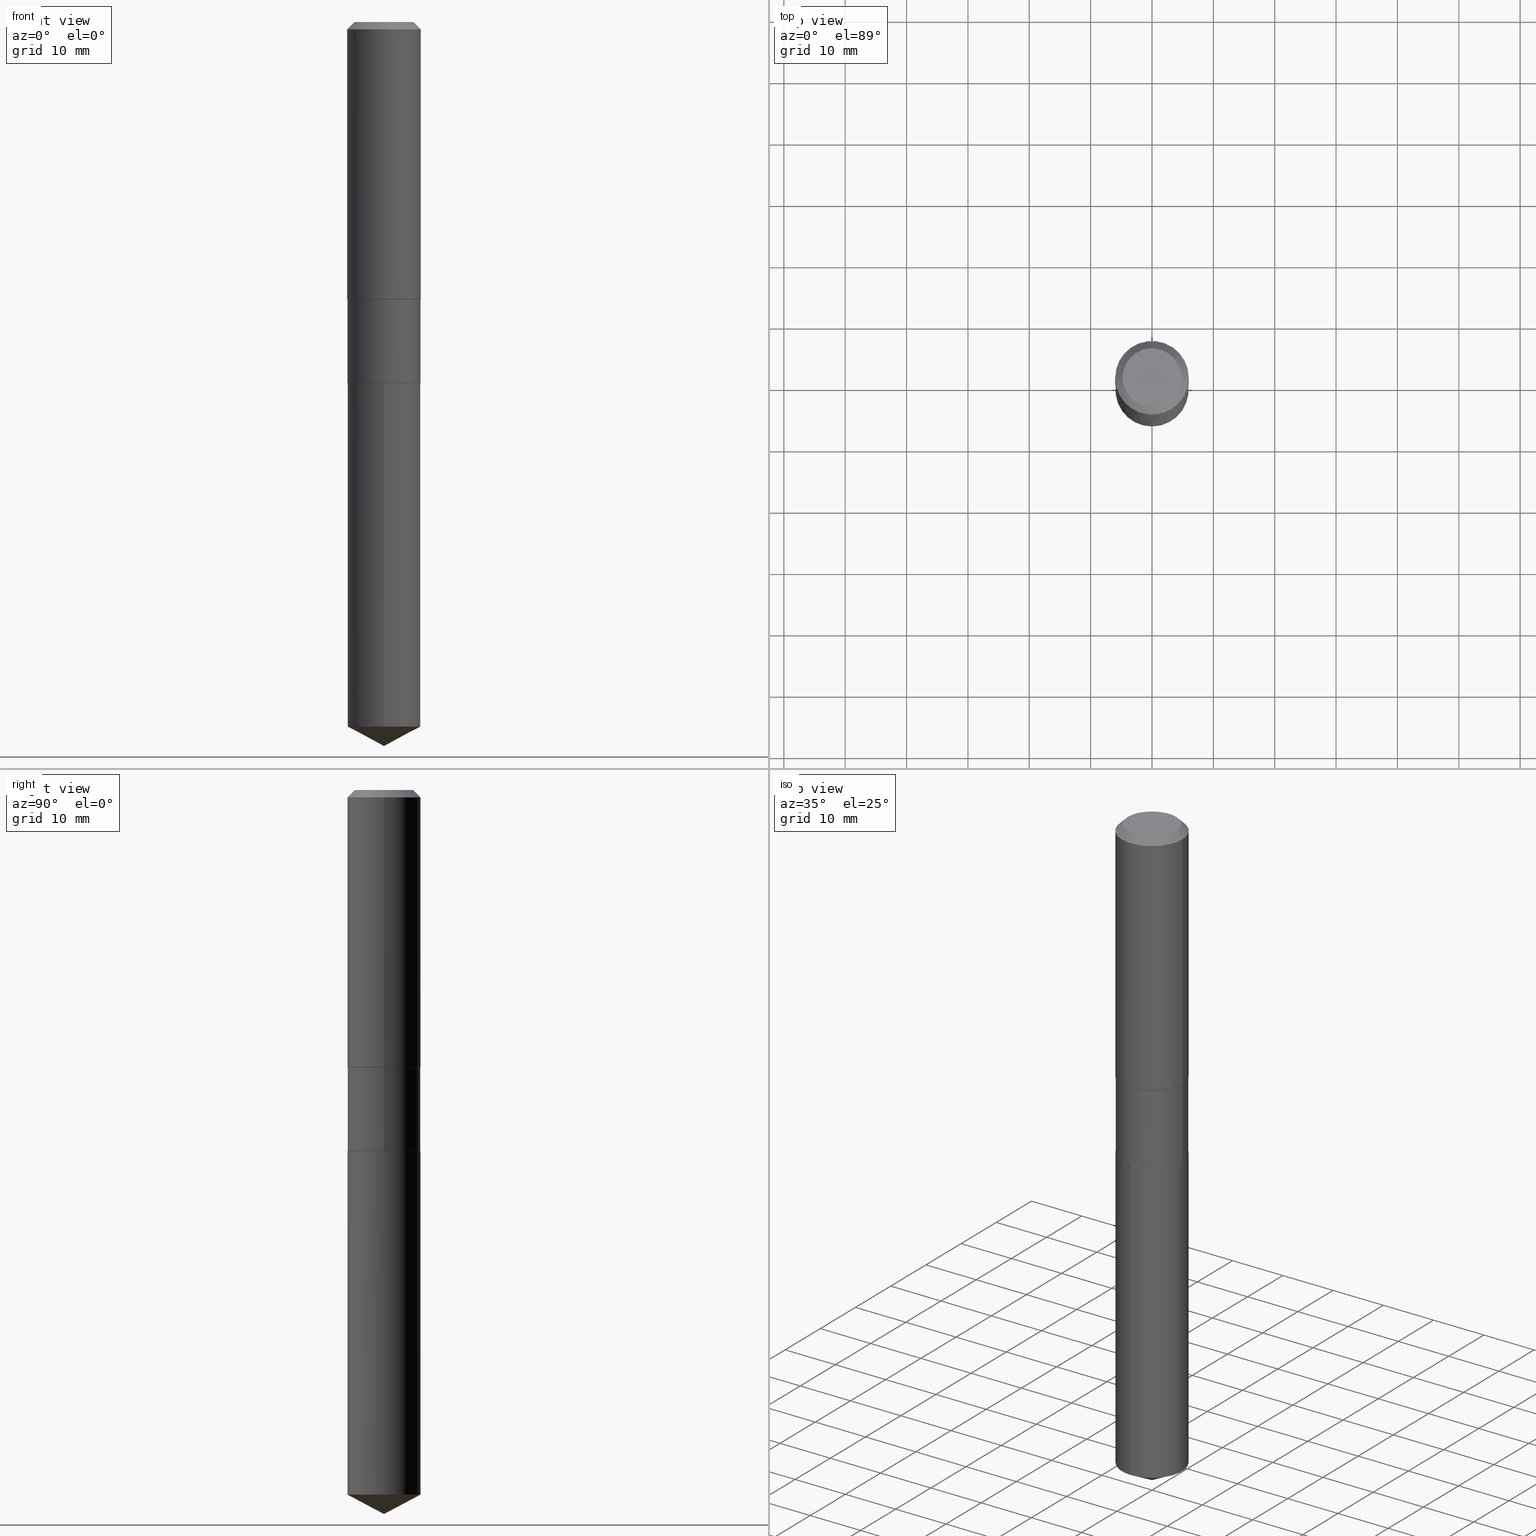
[diagram: canonical four-view strip — front | top / right | iso, engineering-drawing reading convention]
A machine part, canonical four-view strip (front | top / right | iso — engineering-drawing reading convention). The complete STEP part file that produces these views, byte-faithful:
ISO-10303-21;
HEADER;
FILE_DESCRIPTION (( 'STEP AP203' ),
    '1' );
FILE_NAME ('64889.STEP',
    '2024-04-24T19:34:03',
    ( '' ),
    ( '' ),
    'SwSTEP 2.0',
    'SolidWorks 2023',
    '' );
FILE_SCHEMA (( 'CONFIG_CONTROL_DESIGN' ));
ENDSEC;

DATA;
#1 = EDGE_LOOP ( 'NONE', ( #186, #90, #219 ) ) ;
#2 = EDGE_CURVE ( 'NONE', #275, #108, #117, .T. ) ;
#3 = FACE_OUTER_BOUND ( 'NONE', #195, .T. ) ;
#4 = ADVANCED_FACE ( 'NONE', ( #13 ), #64, .T. ) ;
#5 = LINE ( 'NONE', #370, #457 ) ;
#6 = VERTEX_POINT ( 'NONE', #240 ) ;
#7 = CIRCLE ( 'NONE', #440, 0.2362000000000002153 ) ;
#8 = DIRECTION ( 'NONE',  ( -6.982962677686265133E-15, -1.000000000000000000, 3.498631368620187579E-15 ) ) ;
#9 = EDGE_LOOP ( 'NONE', ( #362, #383, #364, #475 ) ) ;
#10 = ORIENTED_EDGE ( 'NONE', *, *, #474, .T. ) ;
#11 = CC_DESIGN_PERSON_AND_ORGANIZATION_ASSIGNMENT ( #164, #126, ( #27 ) ) ;
#12 = PERSON_AND_ORGANIZATION ( #175, #181 ) ;
#13 = FACE_OUTER_BOUND ( 'NONE', #114, .T. ) ;
#14 = AXIS2_PLACEMENT_3D ( 'NONE', #133, #358, #127 ) ;
#15 = DIRECTION ( 'NONE',  ( -2.445468806185136597E-29, 3.491481338843145583E-15, 1.000000000000000000 ) ) ;
#16 = CARTESIAN_POINT ( 'NONE',  ( 1.155239464041865506E-30, -1.649375784469511859E-16, -0.04724000000000028177 ) ) ;
#17 = EDGE_CURVE ( 'NONE', #35, #337, #180, .T. ) ;
#18 = AXIS2_PLACEMENT_3D ( 'NONE', #295, #218, #448 ) ;
#19 = VERTEX_POINT ( 'NONE', #160 ) ;
#20 = EDGE_CURVE ( 'NONE', #69, #275, #393, .T. ) ;
#21 = FACE_OUTER_BOUND ( 'NONE', #315, .T. ) ;
#22 = CONICAL_SURFACE ( 'NONE', #294, 0.2337500000000000133, 0.7853981633975507526 ) ;
#23 = CARTESIAN_POINT ( 'NONE',  ( -9.427742298522546243E-47, 1.346031739168365344E-32, 3.855188123715862256E-18 ) ) ;
#24 = ADVANCED_FACE ( 'NONE', ( #319 ), #428, .T. ) ;
#25 = DIRECTION ( 'NONE',  ( -2.445468806185136597E-29, 3.491481338843145583E-15, 1.000000000000000000 ) ) ;
#26 = ORIENTED_EDGE ( 'NONE', *, *, #357, .F. ) ;
#27 = PRODUCT_DEFINITION ( 'UNKNOWN', '', #220, #298 ) ;
#28 = AXIS2_PLACEMENT_3D ( 'NONE', #422, #239, #343 ) ;
#29 = CARTESIAN_POINT ( 'NONE',  ( 0.2342499999999999583, -1.635759007248007614E-15, 1.142244409730197744E-29 ) ) ;
#30 = CIRCLE ( 'NONE', #230, 0.2342500000000000138 ) ;
#31 = VECTOR ( 'NONE', #285, 39.37007874015748143 ) ;
#32 = CARTESIAN_POINT ( 'NONE',  ( -1.635759007247950816E-15, -0.2342500000000080906, -2.318899999999998851 ) ) ;
#33 = ORIENTED_EDGE ( 'NONE', *, *, #134, .F. ) ;
#34 = CARTESIAN_POINT ( 'NONE',  ( 5.670797614662712652E-29, -8.096396076643368740E-15, -2.318899999999999739 ) ) ;
#35 = VERTEX_POINT ( 'NONE', #125 ) ;
#36 = DIRECTION ( 'NONE',  ( -2.445468806185136597E-29, 3.491481338843145583E-15, 1.000000000000000000 ) ) ;
#37 = VERTEX_POINT ( 'NONE', #348 ) ;
#38 = VECTOR ( 'NONE', #266, 39.37007874015748143 ) ;
#39 = DIRECTION ( 'NONE',  ( 2.445464024596641988E-29, -3.491488186350020456E-15, -1.000000000000000000 ) ) ;
#40 = VECTOR ( 'NONE', #363, 39.37007874015748143 ) ;
#41 = EDGE_CURVE ( 'NONE', #110, #262, #437, .T. ) ;
#42 = CARTESIAN_POINT ( 'NONE',  ( 0.2361999999999999933, -1.814313362916447440E-15, -0.04724000000000028177 ) ) ;
#43 = EDGE_CURVE ( 'NONE', #106, #6, #321, .T. ) ;
#44 = LINE ( 'NONE', #187, #306 ) ;
#45 = ORIENTED_EDGE ( 'NONE', *, *, #355, .T. ) ;
#46 = LINE ( 'NONE', #418, #254 ) ;
#47 = VECTOR ( 'NONE', #402, 39.37007874015748854 ) ;
#48 = ADVANCED_BREP_SHAPE_REPRESENTATION ( '64889', ( #271, #264, #375 ), #137 ) ;
#49 = CARTESIAN_POINT ( 'NONE',  ( 4.353179021890160223E-29, -6.215185931274680764E-15, -1.780099999999999349 ) ) ;
#50 = APPROVAL_STATUS ( 'not_yet_approved' ) ;
#51 = EDGE_LOOP ( 'NONE', ( #303, #426, #292, #454 ) ) ;
#52 = COORDINATED_UNIVERSAL_TIME_OFFSET ( 5, 0, .BEHIND. ) ;
#53 = CARTESIAN_POINT ( 'NONE',  ( 5.669574880259619850E-29, -8.094650335973948025E-15, -2.318399999999999572 ) ) ;
#54 = CARTESIAN_POINT ( 'NONE',  ( 1.155239464041865506E-30, -1.649375784469511859E-16, -0.04724000000000028177 ) ) ;
#55 = ADVANCED_FACE ( 'NONE', ( #276 ), #221, .T. ) ;
#56 = DATE_AND_TIME ( #323, #155 ) ;
#57 = DIRECTION ( 'NONE',  ( 1.000000000000000000, -6.982962677686265133E-15, 0.000000000000000000 ) ) ;
#58 = ORIENTED_EDGE ( 'NONE', *, *, #2, .T. ) ;
#59 = APPROVAL ( #394, 'UNSPECIFIED' ) ;
#60 = APPROVAL_ROLE ( '' ) ;
#61 = DIRECTION ( 'NONE',  ( -2.445468806185136597E-29, 3.491481338843145583E-15, 1.000000000000000000 ) ) ;
#62 = EDGE_CURVE ( 'NONE', #37, #166, #46, .T. ) ;
#63 = DIRECTION ( 'NONE',  ( 1.000000000000000000, -6.982962677686266711E-15, 0.000000000000000000 ) ) ;
#64 = CONICAL_SURFACE ( 'NONE', #463, 0.2361999999999999933, 0.7853981633974452814 ) ;
#65 = CIRCLE ( 'NONE', #304, 0.1889600000000000168 ) ;
#66 = EDGE_CURVE ( 'NONE', #110, #81, #85, .T. ) ;
#67 = CYLINDRICAL_SURFACE ( 'NONE', #368, 0.2362000000000001043 ) ;
#68 = LINE ( 'NONE', #281, #268 ) ;
#69 = VERTEX_POINT ( 'NONE', #469 ) ;
#70 = CARTESIAN_POINT ( 'NONE',  ( -0.2342499999999999305, -5.490471775106280794E-15, -1.780099999999999349 ) ) ;
#71 = AXIS2_PLACEMENT_3D ( 'NONE', #434, #324, #174 ) ;
#72 = DIRECTION ( 'NONE',  ( 1.000000000000000000, -6.982962677686266711E-15, 4.876176775795935793E-29 ) ) ;
#73 = ORIENTED_EDGE ( 'NONE', *, *, #480, .F. ) ;
#74 = APPROVAL ( #50, 'UNSPECIFIED' ) ;
#75 = DIRECTION ( 'NONE',  ( -2.445464024596642268E-29, 3.491488186350020456E-15, 1.000000000000000000 ) ) ;
#76 = LINE ( 'NONE', #150, #145 ) ;
#77 = DIRECTION ( 'NONE',  ( 0.000000000000000000, 0.000000000000000000, 1.000000000000000000 ) ) ;
#78 = CARTESIAN_POINT ( 'NONE',  ( 0.2342499999999999305, -7.850944938522688772E-15, -1.780099999999999349 ) ) ;
#79 = AXIS2_PLACEMENT_3D ( 'NONE', #225, #39, #379 ) ;
#80 = EDGE_CURVE ( 'NONE', #143, #108, #7, .T. ) ;
#81 = VERTEX_POINT ( 'NONE', #211 ) ;
#82 = DIRECTION ( 'NONE',  ( -2.445468806185136597E-29, 3.491481338843145583E-15, 1.000000000000000000 ) ) ;
#83 = ORIENTED_EDGE ( 'NONE', *, *, #41, .T. ) ;
#84 = EDGE_LOOP ( 'NONE', ( #83, #156, #269, #296 ) ) ;
#85 = LINE ( 'NONE', #87, #376 ) ;
#86 = CIRCLE ( 'NONE', #248, 0.2342500000000000138 ) ;
#87 = CARTESIAN_POINT ( 'NONE',  ( 0.2337500000000000133, -9.728663602552533741E-15, -2.318899999999999739 ) ) ;
#88 = ORIENTED_EDGE ( 'NONE', *, *, #447, .F. ) ;
#89 = DATE_TIME_ROLE ( 'creation_date' ) ;
#90 = ORIENTED_EDGE ( 'NONE', *, *, #134, .T. ) ;
#91 = EDGE_CURVE ( 'NONE', #275, #340, #113, .T. ) ;
#92 = DIRECTION ( 'NONE',  ( 2.445468806185136597E-29, -3.491481338843145583E-15, -1.000000000000000000 ) ) ;
#93 = PERSON_AND_ORGANIZATION ( #175, #181 ) ;
#94 = EDGE_CURVE ( 'NONE', #37, #19, #212, .T. ) ;
#95 = CYLINDRICAL_SURFACE ( 'NONE', #456, 0.2362000000000001043 ) ;
#96 = DIRECTION ( 'NONE',  ( 1.000000000000000000, -6.982962677686266711E-15, 4.876176775795935793E-29 ) ) ;
#97 = VECTOR ( 'NONE', #387, 39.37007874015747433 ) ;
#98 = AXIS2_PLACEMENT_3D ( 'NONE', #49, #353, #471 ) ;
#99 = DIRECTION ( 'NONE',  ( 1.000000000000000000, -6.982962677686267499E-15, 0.000000000000000000 ) ) ;
#100 = DIRECTION ( 'NONE',  ( -2.445468806185136877E-29, 3.491481338843145188E-15, 1.000000000000000000 ) ) ;
#101 = FACE_OUTER_BOUND ( 'NONE', #237, .T. ) ;
#102 = CIRCLE ( 'NONE', #189, 0.2342500000000000138 ) ;
#103 = CC_DESIGN_DATE_AND_TIME_ASSIGNMENT ( #234, #391, ( #202 ) ) ;
#104 = AXIS2_PLACEMENT_3D ( 'NONE', #200, #482, #473 ) ;
#105 = DIRECTION ( 'NONE',  ( -2.445468806185136597E-29, 3.491481338843145583E-15, 1.000000000000000000 ) ) ;
#106 = VERTEX_POINT ( 'NONE', #398 ) ;
#107 = DIRECTION ( 'NONE',  ( 0.7071067811865536790, -2.468850131082321353E-15, 0.7071067811865413555 ) ) ;
#108 = VERTEX_POINT ( 'NONE', #483 ) ;
#109 = DIRECTION ( 'NONE',  ( 1.000000000000000000, -6.982962677686265922E-15, 4.876176775795935793E-29 ) ) ;
#110 = VERTEX_POINT ( 'NONE', #367 ) ;
#111 = MECHANICAL_CONTEXT ( 'NONE', #270, 'mechanical' ) ;
#112 = CARTESIAN_POINT ( 'NONE',  ( 0.2342499999999999305, -7.850944938522688772E-15, -1.780099999999999349 ) ) ;
#113 = CIRCLE ( 'NONE', #420, 0.2342499999999999305 ) ;
#114 = EDGE_LOOP ( 'NONE', ( #179, #140, #378, #152 ) ) ;
#115 = ORIENTED_EDGE ( 'NONE', *, *, #2, .F. ) ;
#116 = CLOSED_SHELL ( 'NONE', ( #122, #4, #210, #24, #316, #365, #278, #173, #55, #118, #301, #351 ) ) ;
#117 = LINE ( 'NONE', #151, #427 ) ;
#118 = ADVANCED_FACE ( 'NONE', ( #327 ), #361, .F. ) ;
#119 = DIRECTION ( 'NONE',  ( -1.000000000000000000, 6.982962677686266711E-15, 0.000000000000000000 ) ) ;
#120 = CALENDAR_DATE ( 2024, 24, 4 ) ;
#121 = CARTESIAN_POINT ( 'NONE',  ( -8.491720789749803429E-28, 1.212397740282873395E-13, 34.72437874015748349 ) ) ;
#122 = ADVANCED_FACE ( 'NONE', ( #288 ), #277, .T. ) ;
#123 = DIRECTION ( 'NONE',  ( 1.000000000000000000, -6.982962677686266711E-15, 0.000000000000000000 ) ) ;
#124 = APPROVAL_ROLE ( '' ) ;
#125 = CARTESIAN_POINT ( 'NONE',  ( -0.2361999999999999933, -1.508355618690086330E-15, -0.04724000000000028177 ) ) ;
#126 = PERSON_AND_ORGANIZATION_ROLE ( 'creator' ) ;
#127 = DIRECTION ( 'NONE',  ( -6.982962677686265133E-15, -1.000000000000000000, 2.332420912413458386E-15 ) ) ;
#128 = PERSON_AND_ORGANIZATION_ROLE ( 'classification_officer' ) ;
#129 = CARTESIAN_POINT ( 'NONE',  ( 0.000000000000000000, 0.000000000000000000, 0.000000000000000000 ) ) ;
#130 = DIRECTION ( 'NONE',  ( 1.000000000000000000, -6.982962677686266711E-15, 4.876176775795935793E-29 ) ) ;
#131 = ORIENTED_EDGE ( 'NONE', *, *, #161, .T. ) ;
#132 = VECTOR ( 'NONE', #107, 39.37007874015748143 ) ;
#133 = CARTESIAN_POINT ( 'NONE',  ( 1.105631358694246645E-28, -1.578551568972603113E-14, -4.521147065633298823 ) ) ;
#134 = EDGE_CURVE ( 'NONE', #286, #37, #356, .T. ) ;
#135 = CARTESIAN_POINT ( 'NONE',  ( 4.353179021890160223E-29, -6.215185931274680764E-15, -1.780099999999999349 ) ) ;
#136 = CYLINDRICAL_SURFACE ( 'NONE', #481, 0.2342499999999999583 ) ;
#137 =( GEOMETRIC_REPRESENTATION_CONTEXT ( 3 ) GLOBAL_UNCERTAINTY_ASSIGNED_CONTEXT ( ( #199 ) ) GLOBAL_UNIT_ASSIGNED_CONTEXT ( ( #172, #414, #341 ) ) REPRESENTATION_CONTEXT ( 'NONE', 'WORKASPACE' ) );
#138 = CLOSED_SHELL ( 'NONE', ( #409, #349, #442, #318, #283 ) ) ;
#139 = DIRECTION ( 'NONE',  ( -6.982962677686265133E-15, -1.000000000000000000, 3.498631368620187579E-15 ) ) ;
#140 = ORIENTED_EDGE ( 'NONE', *, *, #396, .T. ) ;
#141 = EDGE_CURVE ( 'NONE', #19, #37, #359, .T. ) ;
#142 = DIRECTION ( 'NONE',  ( -2.445464024596642268E-29, 3.491488186350020456E-15, 1.000000000000000000 ) ) ;
#143 = VERTEX_POINT ( 'NONE', #320 ) ;
#144 = APPLICATION_PROTOCOL_DEFINITION ( 'international standard', 'config_control_design', 1994, #270 ) ;
#145 = VECTOR ( 'NONE', #345, 39.37007874015748143 ) ;
#146 = CARTESIAN_POINT ( 'NONE',  ( -8.491720789749803429E-28, 1.212397740282873395E-13, 34.72437874015748349 ) ) ;
#147 = FACE_OUTER_BOUND ( 'NONE', #228, .T. ) ;
#148 = AXIS2_PLACEMENT_3D ( 'NONE', #158, #308, #317 ) ;
#149 = ORIENTED_EDGE ( 'NONE', *, *, #447, .T. ) ;
#150 = CARTESIAN_POINT ( 'NONE',  ( -0.2337500000000000133, -6.435502431804135250E-15, -2.318899999999999739 ) ) ;
#151 = CARTESIAN_POINT ( 'NONE',  ( -0.2342499999999999305, -4.550739572756646375E-15, -1.780099999999999349 ) ) ;
#152 = ORIENTED_EDGE ( 'NONE', *, *, #227, .F. ) ;
#153 = APPLICATION_PROTOCOL_DEFINITION ( 'international standard', 'config_control_design', 1994, #430 ) ;
#154 = PERSON_AND_ORGANIZATION ( #175, #181 ) ;
#155 = LOCAL_TIME ( 15, 34, 3.000000000000000000, #476 ) ;
#156 = ORIENTED_EDGE ( 'NONE', *, *, #439, .T. ) ;
#157 = EDGE_CURVE ( 'NONE', #143, #337, #397, .T. ) ;
#158 = CARTESIAN_POINT ( 'NONE',  ( 5.670797614662712652E-29, -8.096396076643368740E-15, -2.318899999999999739 ) ) ;
#159 = CALENDAR_DATE ( 2024, 24, 4 ) ;
#160 = CARTESIAN_POINT ( 'NONE',  ( -1.635759007247896976E-15, -0.2342500000000157512, -4.521147065633297935 ) ) ;
#161 = EDGE_CURVE ( 'NONE', #262, #110, #259, .T. ) ;
#162 = CARTESIAN_POINT ( 'NONE',  ( 1.136091458957753192E-28, -1.622037490995890314E-14, -4.645699999999999719 ) ) ;
#163 = AXIS2_PLACEMENT_3D ( 'NONE', #135, #241, #330 ) ;
#164 = PERSON_AND_ORGANIZATION ( #175, #181 ) ;
#165 = CARTESIAN_POINT ( 'NONE',  ( 0.2362000000000001043, -1.649375784469496920E-15, 1.151752954443000508E-29 ) ) ;
#166 = VERTEX_POINT ( 'NONE', #280 ) ;
#167 = CARTESIAN_POINT ( 'NONE',  ( 4.353179021890160223E-29, -6.215185931274680764E-15, -1.780099999999999349 ) ) ;
#168 = APPROVAL_PERSON_ORGANIZATION ( #384, #74, #193 ) ;
#169 = CARTESIAN_POINT ( 'NONE',  ( -0.2337500000000000133, -6.432853204630024837E-15, -2.318899999999999739 ) ) ;
#170 = CC_DESIGN_APPROVAL ( #59, ( #220 ) ) ;
#171 = ORIENTED_EDGE ( 'NONE', *, *, #66, .T. ) ;
#172 =( CONVERSION_BASED_UNIT ( 'INCH', #251 ) LENGTH_UNIT ( ) NAMED_UNIT ( #329 ) );
#173 = ADVANCED_FACE ( 'NONE', ( #21 ), #95, .T. ) ;
#174 = DIRECTION ( 'NONE',  ( 1.000000000000000000, -6.982962677686262766E-15, 0.000000000000000000 ) ) ;
#175 = PERSON ( 'UNSPECIFIED', 'UNSPECIFIED', 'UNSPECIFIED', ('UNSPECIFIED'), ('UNSPECIFIED'), ('UNSPECIFIED') ) ;
#176 = CARTESIAN_POINT ( 'NONE',  ( 4.348410357718098409E-29, -6.208377542663936505E-15, -1.778149999999999231 ) ) ;
#177 = EDGE_LOOP ( 'NONE', ( #385, #184, #203, #223 ) ) ;
#178 = CYLINDRICAL_SURFACE ( 'NONE', #433, 0.2342500000000000138 ) ;
#179 = ORIENTED_EDGE ( 'NONE', *, *, #258, .F. ) ;
#180 = CIRCLE ( 'NONE', #244, 0.2361999999999999933 ) ;
#181 = ORGANIZATION ( 'UNSPECIFIED', 'UNSPECIFIED', '' ) ;
#182 = AXIS2_PLACEMENT_3D ( 'NONE', #429, #92, #312 ) ;
#183 = DIRECTION ( 'NONE',  ( -2.445468806185136597E-29, 3.491481338843145583E-15, 1.000000000000000000 ) ) ;
#184 = ORIENTED_EDGE ( 'NONE', *, *, #403, .T. ) ;
#185 = DIRECTION ( 'NONE',  ( 1.000000000000000000, -6.982962677686266711E-15, 0.000000000000000000 ) ) ;
#186 = ORIENTED_EDGE ( 'NONE', *, *, #474, .F. ) ;
#187 = CARTESIAN_POINT ( 'NONE',  ( 0.2361999999999999933, -1.785387205520586782E-15, -0.04724000000000028177 ) ) ;
#188 = ORIENTED_EDGE ( 'NONE', *, *, #141, .T. ) ;
#189 = AXIS2_PLACEMENT_3D ( 'NONE', #53, #15, #57 ) ;
#190 = CC_DESIGN_PERSON_AND_ORGANIZATION_ASSIGNMENT ( #154, #128, ( #202 ) ) ;
#191 = VERTEX_POINT ( 'NONE', #479 ) ;
#192 = DIRECTION ( 'NONE',  ( 0.7071067811866199593, -2.468850131083015945E-15, 0.7071067811864750752 ) ) ;
#193 = APPROVAL_ROLE ( '' ) ;
#194 = DIRECTION ( 'NONE',  ( -2.445464024596642268E-29, 3.491488186350020456E-15, 1.000000000000000000 ) ) ;
#195 = EDGE_LOOP ( 'NONE', ( #421, #478 ) ) ;
#196 = PERSON_AND_ORGANIZATION_ROLE ( 'creator' ) ;
#197 = DIRECTION ( 'NONE',  ( 2.445468806185136597E-29, -3.491481338843145583E-15, -1.000000000000000000 ) ) ;
#198 = CARTESIAN_POINT ( 'NONE',  ( -0.2342499999999999583, 1.664446358518034389E-15, -1.152260544892211521E-29 ) ) ;
#199 = UNCERTAINTY_MEASURE_WITH_UNIT (LENGTH_MEASURE( 1.000000000000000082E-05 ), #172, 'distance_accuracy_value', 'NONE');
#200 = CARTESIAN_POINT ( 'NONE',  ( -4.713871149261273121E-47, 6.730158695841826722E-33, 1.927594061857931128E-18 ) ) ;
#201 = CARTESIAN_POINT ( 'NONE',  ( 0.000000000000000000, 0.000000000000000000, 0.000000000000000000 ) ) ;
#202 = SECURITY_CLASSIFICATION ( '', '', #238 ) ;
#203 = ORIENTED_EDGE ( 'NONE', *, *, #431, .F. ) ;
#204 = AXIS2_PLACEMENT_3D ( 'NONE', #441, #25, #249 ) ;
#205 = AXIS2_PLACEMENT_3D ( 'NONE', #416, #82, #213 ) ;
#206 = LINE ( 'NONE', #32, #40 ) ;
#207 = EDGE_LOOP ( 'NONE', ( #149, #58, #400, #273 ) ) ;
#208 = DIRECTION ( 'NONE',  ( -0.7071067811865453523, 2.468850131082234184E-15, -0.7071067811865496822 ) ) ;
#209 = ORIENTED_EDGE ( 'NONE', *, *, #224, .T. ) ;
#210 = ADVANCED_FACE ( 'NONE', ( #401 ), #67, .T. ) ;
#211 = CARTESIAN_POINT ( 'NONE',  ( 0.2342500000000000138, -9.730409343221956034E-15, -2.318399999999999572 ) ) ;
#212 = CIRCLE ( 'NONE', #14, 0.2342500000000000138 ) ;
#213 = DIRECTION ( 'NONE',  ( 1.000000000000000000, -6.982962677686265133E-15, 0.000000000000000000 ) ) ;
#214 = APPROVAL_DATE_TIME ( #467, #74 ) ;
#215 = CC_DESIGN_PERSON_AND_ORGANIZATION_ASSIGNMENT ( #338, #455, ( #408 ) ) ;
#216 = FACE_OUTER_BOUND ( 'NONE', #350, .T. ) ;
#217 = ORIENTED_EDGE ( 'NONE', *, *, #41, .F. ) ;
#218 = DIRECTION ( 'NONE',  ( -2.445468806185136597E-29, 3.491481338843145583E-15, 1.000000000000000000 ) ) ;
#219 = ORIENTED_EDGE ( 'NONE', *, *, #141, .F. ) ;
#220 = PRODUCT_DEFINITION_FORMATION_WITH_SPECIFIED_SOURCE ( 'ANY', '', #408, .NOT_KNOWN. ) ;
#221 = CONICAL_SURFACE ( 'NONE', #182, 0.2361999999999999933, 0.7853981633974452814 ) ;
#222 = FACE_OUTER_BOUND ( 'NONE', #1, .T. ) ;
#223 = ORIENTED_EDGE ( 'NONE', *, *, #157, .F. ) ;
#224 = EDGE_CURVE ( 'NONE', #81, #340, #477, .T. ) ;
#225 = CARTESIAN_POINT ( 'NONE',  ( 5.670797614662712652E-29, -8.096396076643368740E-15, -2.318899999999999739 ) ) ;
#226 = EDGE_LOOP ( 'NONE', ( #344, #449 ) ) ;
#227 = EDGE_CURVE ( 'NONE', #106, #35, #68, .T. ) ;
#228 = EDGE_LOOP ( 'NONE', ( #346, #371, #88, #307 ) ) ;
#229 = LOCAL_TIME ( 15, 34, 3.000000000000000000, #435 ) ;
#230 = AXIS2_PLACEMENT_3D ( 'NONE', #236, #194, #8 ) ;
#231 =( LENGTH_UNIT ( ) NAMED_UNIT ( * ) SI_UNIT ( $, .METRE. ) );
#232 = CIRCLE ( 'NONE', #399, 0.2362000000000002153 ) ;
#233 = DIRECTION ( 'NONE',  ( -2.445468806185136597E-29, 3.491481338843145583E-15, 1.000000000000000000 ) ) ;
#234 = DATE_AND_TIME ( #386, #229 ) ;
#235 = ORIENTED_EDGE ( 'NONE', *, *, #261, .F. ) ;
#236 = CARTESIAN_POINT ( 'NONE',  ( 5.670797614662712652E-29, -8.096396076643368740E-15, -2.318899999999999739 ) ) ;
#237 = EDGE_LOOP ( 'NONE', ( #423, #131, #171, #73 ) ) ;
#238 = SECURITY_CLASSIFICATION_LEVEL ( 'unclassified' ) ;
#239 = DIRECTION ( 'NONE',  ( -2.445468806185136597E-29, 3.491481338843145583E-15, 1.000000000000000000 ) ) ;
#240 = CARTESIAN_POINT ( 'NONE',  ( 0.1889600000000000168, -1.540873453589747738E-15, 3.855188123725863225E-18 ) ) ;
#241 = DIRECTION ( 'NONE',  ( -2.445468806185136597E-29, 3.491481338843145583E-15, 1.000000000000000000 ) ) ;
#242 = PRODUCT_DEFINITION_SHAPE ( 'NONE', 'NONE',  #27 ) ;
#243 = DIRECTION ( 'NONE',  ( -2.445468806185136597E-29, 3.491481338843145583E-15, 1.000000000000000000 ) ) ;
#244 = AXIS2_PLACEMENT_3D ( 'NONE', #16, #380, #123 ) ;
#245 = DIRECTION ( 'NONE',  ( 1.000000000000000000, -6.982962677686266711E-15, 4.876185090822587894E-29 ) ) ;
#246 = CC_DESIGN_SECURITY_CLASSIFICATION ( #202, ( #220 ) ) ;
#247 = ORIENTED_EDGE ( 'NONE', *, *, #355, .F. ) ;
#248 = AXIS2_PLACEMENT_3D ( 'NONE', #302, #75, #453 ) ;
#249 = DIRECTION ( 'NONE',  ( 1.000000000000000000, -6.982962677686262766E-15, 0.000000000000000000 ) ) ;
#250 = EDGE_LOOP ( 'NONE', ( #289, #373, #209, #451 ) ) ;
#251 = LENGTH_MEASURE_WITH_UNIT ( LENGTH_MEASURE( 0.02539999999999999897 ), #231 );
#252 = CARTESIAN_POINT ( 'NONE',  ( 4.348410357718098409E-29, -6.208377542663936505E-15, -1.778149999999999231 ) ) ;
#253 = CYLINDRICAL_SURFACE ( 'NONE', #342, 0.2342500000000000138 ) ;
#254 = VECTOR ( 'NONE', #464, 39.37007874015748143 ) ;
#255 = CARTESIAN_POINT ( 'NONE',  ( 1.136089221906862028E-28, -1.622040666732628872E-14, -4.645699999999999719 ) ) ;
#256 = CARTESIAN_POINT ( 'NONE',  ( 0.000000000000000000, 0.000000000000000000, 0.000000000000000000 ) ) ;
#257 = LINE ( 'NONE', #112, #132 ) ;
#258 = EDGE_CURVE ( 'NONE', #6, #106, #65, .T. ) ;
#259 = CIRCLE ( 'NONE', #204, 0.2337500000000000133 ) ;
#260 = FACE_OUTER_BOUND ( 'NONE', #250, .T. ) ;
#261 = EDGE_CURVE ( 'NONE', #19, #191, #206, .T. ) ;
#262 = VERTEX_POINT ( 'NONE', #169 ) ;
#263 = CIRCLE ( 'NONE', #18, 0.2361999999999999933 ) ;
#264 = MANIFOLD_SOLID_BREP ( 'Body-Move/Copy2[2]', #116 ) ;
#265 = FACE_OUTER_BOUND ( 'NONE', #406, .T. ) ;
#266 = DIRECTION ( 'NONE',  ( -2.445468806185136877E-29, 3.491481338843145188E-15, 1.000000000000000000 ) ) ;
#267 = CC_DESIGN_DATE_AND_TIME_ASSIGNMENT ( #56, #89, ( #27 ) ) ;
#268 = VECTOR ( 'NONE', #208, 39.37007874015748143 ) ;
#269 = ORIENTED_EDGE ( 'NONE', *, *, #389, .F. ) ;
#270 = APPLICATION_CONTEXT ( 'configuration controlled 3d designs of mechanical parts and assemblies' ) ;
#271 = MANIFOLD_SOLID_BREP ( 'Body-Move/Copy2[1]', #138 ) ;
#272 = PERSON_AND_ORGANIZATION ( #175, #181 ) ;
#273 = ORIENTED_EDGE ( 'NONE', *, *, #309, .F. ) ;
#274 = PERSON_AND_ORGANIZATION_ROLE ( 'design_supplier' ) ;
#275 = VERTEX_POINT ( 'NONE', #70 ) ;
#276 = FACE_OUTER_BOUND ( 'NONE', #9, .T. ) ;
#277 = CONICAL_SURFACE ( 'NONE', #71, 0.2337500000000000133, 0.7853981633975507526 ) ;
#278 = ADVANCED_FACE ( 'NONE', ( #328 ), #405, .T. ) ;
#279 = DATE_AND_TIME ( #120, #412 ) ;
#280 = CARTESIAN_POINT ( 'NONE',  ( 1.664446358518145618E-15, 0.2342499999999919369, -2.318900000000000627 ) ) ;
#281 = CARTESIAN_POINT ( 'NONE',  ( -0.2361999999999999933, 1.484438206022545019E-15, -0.04724000000000028177 ) ) ;
#282 = AXIS2_PLACEMENT_3D ( 'NONE', #121, #311, #462 ) ;
#283 = ADVANCED_FACE ( 'NONE', ( #3 ), #334, .F. ) ;
#284 = APPROVAL_PERSON_ORGANIZATION ( #272, #59, #60 ) ;
#285 = DIRECTION ( 'NONE',  ( -2.445468806185136877E-29, 3.491481338843145188E-15, 1.000000000000000000 ) ) ;
#286 = VERTEX_POINT ( 'NONE', #255 ) ;
#287 = VECTOR ( 'NONE', #100, 39.37007874015748143 ) ;
#288 = FACE_OUTER_BOUND ( 'NONE', #84, .T. ) ;
#289 = ORIENTED_EDGE ( 'NONE', *, *, #20, .F. ) ;
#290 = CIRCLE ( 'NONE', #28, 0.2342499999999999305 ) ;
#291 = DIRECTION ( 'NONE',  ( -2.445464024596642268E-29, 3.491488186350020456E-15, 1.000000000000000000 ) ) ;
#292 = ORIENTED_EDGE ( 'NONE', *, *, #261, .T. ) ;
#293 = DIRECTION ( 'NONE',  ( -2.445468806185136877E-29, 3.491481338843145188E-15, 1.000000000000000000 ) ) ;
#294 = AXIS2_PLACEMENT_3D ( 'NONE', #34, #36, #377 ) ;
#295 = CARTESIAN_POINT ( 'NONE',  ( 1.155239464041865506E-30, -1.649375784469511859E-16, -0.04724000000000028177 ) ) ;
#296 = ORIENTED_EDGE ( 'NONE', *, *, #66, .F. ) ;
#297 = CARTESIAN_POINT ( 'NONE',  ( 0.000000000000000000, 0.000000000000000000, 0.000000000000000000 ) ) ;
#298 = DESIGN_CONTEXT ( 'detailed design', #430, 'design' ) ;
#299 = ORIENTED_EDGE ( 'NONE', *, *, #157, .T. ) ;
#300 = FACE_OUTER_BOUND ( 'NONE', #322, .T. ) ;
#301 = ADVANCED_FACE ( 'NONE', ( #300 ), #446, .F. ) ;
#302 = CARTESIAN_POINT ( 'NONE',  ( 5.670797614662712652E-29, -8.096396076643368740E-15, -2.318899999999999739 ) ) ;
#303 = ORIENTED_EDGE ( 'NONE', *, *, #62, .F. ) ;
#304 = AXIS2_PLACEMENT_3D ( 'NONE', #23, #395, #245 ) ;
#305 = DIRECTION ( 'NONE',  ( -6.982962677686265922E-15, -1.000000000000000000, 3.541896320645553375E-15 ) ) ;
#306 = VECTOR ( 'NONE', #339, 39.37007874015748143 ) ;
#307 = ORIENTED_EDGE ( 'NONE', *, *, #224, .F. ) ;
#308 = DIRECTION ( 'NONE',  ( -2.445468806185136597E-29, 3.491481338843145583E-15, 1.000000000000000000 ) ) ;
#309 = EDGE_CURVE ( 'NONE', #340, #143, #257, .T. ) ;
#310 = CONICAL_SURFACE ( 'NONE', #282, 74.04434902938369589, 1.082104136236487379 ) ;
#311 = DIRECTION ( 'NONE',  ( -2.445464024596642268E-29, 3.491488186350020456E-15, 1.000000000000000000 ) ) ;
#312 = DIRECTION ( 'NONE',  ( -1.000000000000000000, 6.982962677686266711E-15, 0.000000000000000000 ) ) ;
#313 = CALENDAR_DATE ( 2024, 24, 4 ) ;
#314 = CIRCLE ( 'NONE', #205, 0.2342500000000000138 ) ;
#315 = EDGE_LOOP ( 'NONE', ( #335, #45, #299, #332 ) ) ;
#316 = ADVANCED_FACE ( 'NONE', ( #147 ), #490, .T. ) ;
#317 = DIRECTION ( 'NONE',  ( 1.000000000000000000, -6.982962677686262766E-15, 0.000000000000000000 ) ) ;
#318 = ADVANCED_FACE ( 'NONE', ( #407 ), #253, .T. ) ;
#319 = FACE_OUTER_BOUND ( 'NONE', #207, .T. ) ;
#320 = CARTESIAN_POINT ( 'NONE',  ( 0.2362000000000002153, -7.857753327133433819E-15, -1.778149999999999231 ) ) ;
#321 = CIRCLE ( 'NONE', #392, 0.1889600000000000168 ) ;
#322 = EDGE_LOOP ( 'NONE', ( #217, #459 ) ) ;
#323 = CALENDAR_DATE ( 2024, 24, 4 ) ;
#324 = DIRECTION ( 'NONE',  ( -2.445468806185136597E-29, 3.491481338843145583E-15, 1.000000000000000000 ) ) ;
#325 = DIRECTION ( 'NONE',  ( -2.445468806185136597E-29, 3.491481338843145583E-15, 1.000000000000000000 ) ) ;
#326 = SHAPE_DEFINITION_REPRESENTATION ( #242, #48 ) ;
#327 = FACE_OUTER_BOUND ( 'NONE', #226, .T. ) ;
#328 = FACE_OUTER_BOUND ( 'NONE', #486, .T. ) ;
#329 = DIMENSIONAL_EXPONENTS ( 1.000000000000000000, 0.000000000000000000, 0.000000000000000000, 0.000000000000000000, 0.000000000000000000, 0.000000000000000000, 0.000000000000000000 ) ;
#330 = DIRECTION ( 'NONE',  ( 1.000000000000000000, -6.982962677686267499E-15, 0.000000000000000000 ) ) ;
#331 = CARTESIAN_POINT ( 'NONE',  ( 5.670797614662712652E-29, -8.096396076643368740E-15, -2.318899999999999739 ) ) ;
#332 = ORIENTED_EDGE ( 'NONE', *, *, #17, .F. ) ;
#333 = CONICAL_SURFACE ( 'NONE', #415, 74.04434902938369589, 1.082104136236487379 ) ;
#334 = PLANE ( 'NONE',  #79 ) ;
#335 = ORIENTED_EDGE ( 'NONE', *, *, #403, .F. ) ;
#336 = DIRECTION ( 'NONE',  ( -6.982962677686265133E-15, -1.000000000000000000, 3.498631368620187579E-15 ) ) ;
#337 = VERTEX_POINT ( 'NONE', #42 ) ;
#338 = PERSON_AND_ORGANIZATION ( #175, #181 ) ;
#339 = DIRECTION ( 'NONE',  ( 0.7071067811865453523, -7.319954787623248157E-15, -0.7071067811865496822 ) ) ;
#340 = VERTEX_POINT ( 'NONE', #78 ) ;
#341 =( NAMED_UNIT ( * ) SI_UNIT ( $, .STERADIAN. ) SOLID_ANGLE_UNIT ( ) );
#342 = AXIS2_PLACEMENT_3D ( 'NONE', #410, #142, #336 ) ;
#343 = DIRECTION ( 'NONE',  ( 1.000000000000000000, -6.982962677686267499E-15, 0.000000000000000000 ) ) ;
#344 = ORIENTED_EDGE ( 'NONE', *, *, #43, .T. ) ;
#345 = DIRECTION ( 'NONE',  ( -0.7071067811866199593, 7.493145998870616062E-15, 0.7071067811864750752 ) ) ;
#346 = ORIENTED_EDGE ( 'NONE', *, *, #389, .T. ) ;
#347 = COORDINATED_UNIVERSAL_TIME_OFFSET ( 5, 0, .BEHIND. ) ;
#348 = CARTESIAN_POINT ( 'NONE',  ( 1.664446358518144829E-15, 0.2342499999999841931, -4.521147065633300599 ) ) ;
#349 = ADVANCED_FACE ( 'NONE', ( #222 ), #333, .T. ) ;
#350 = EDGE_LOOP ( 'NONE', ( #188, #484, #26, #235 ) ) ;
#351 = ADVANCED_FACE ( 'NONE', ( #101 ), #22, .T. ) ;
#352 = COORDINATED_UNIVERSAL_TIME_OFFSET ( 5, 0, .BEHIND. ) ;
#353 = DIRECTION ( 'NONE',  ( -2.445468806185136597E-29, 3.491481338843145583E-15, 1.000000000000000000 ) ) ;
#354 = APPROVAL_STATUS ( 'not_yet_approved' ) ;
#355 = EDGE_CURVE ( 'NONE', #108, #143, #232, .T. ) ;
#356 = LINE ( 'NONE', #162, #47 ) ;
#357 = EDGE_CURVE ( 'NONE', #191, #166, #86, .T. ) ;
#358 = DIRECTION ( 'NONE',  ( -2.445464024596642268E-29, 3.491488186350020456E-15, 1.000000000000000000 ) ) ;
#359 = CIRCLE ( 'NONE', #381, 0.2342500000000000138 ) ;
#360 = ORIENTED_EDGE ( 'NONE', *, *, #309, .T. ) ;
#361 = PLANE ( 'NONE',  #104 ) ;
#362 = ORIENTED_EDGE ( 'NONE', *, *, #396, .F. ) ;
#363 = DIRECTION ( 'NONE',  ( -2.445464024596642268E-29, 3.491488186350020456E-15, 1.000000000000000000 ) ) ;
#364 = ORIENTED_EDGE ( 'NONE', *, *, #227, .T. ) ;
#365 = ADVANCED_FACE ( 'NONE', ( #260 ), #136, .T. ) ;
#366 = LOCAL_TIME ( 15, 34, 3.000000000000000000, #347 ) ;
#367 = CARTESIAN_POINT ( 'NONE',  ( 0.2337500000000000133, -9.728663602552533741E-15, -2.318899999999999739 ) ) ;
#368 = AXIS2_PLACEMENT_3D ( 'NONE', #129, #243, #130 ) ;
#369 = CC_DESIGN_PERSON_AND_ORGANIZATION_ASSIGNMENT ( #12, #274, ( #220 ) ) ;
#370 = CARTESIAN_POINT ( 'NONE',  ( -0.2362000000000001043, 1.678301941865357380E-15, -1.161852468318209317E-29 ) ) ;
#371 = ORIENTED_EDGE ( 'NONE', *, *, #20, .T. ) ;
#372 = CARTESIAN_POINT ( 'NONE',  ( 0.000000000000000000, 0.000000000000000000, 0.000000000000000000 ) ) ;
#373 = ORIENTED_EDGE ( 'NONE', *, *, #480, .T. ) ;
#374 = DIRECTION ( 'NONE',  ( -2.438088387897960049E-29, 3.491481338843145188E-15, 1.000000000000000000 ) ) ;
#375 = AXIS2_PLACEMENT_3D ( 'NONE', #297, #77, #452 ) ;
#376 = VECTOR ( 'NONE', #192, 39.37007874015748143 ) ;
#377 = DIRECTION ( 'NONE',  ( 1.000000000000000000, -6.982962677686262766E-15, 0.000000000000000000 ) ) ;
#378 = ORIENTED_EDGE ( 'NONE', *, *, #431, .T. ) ;
#379 = DIRECTION ( 'NONE',  ( 6.982962677686265922E-15, 1.000000000000000000, -3.491488186350020456E-15 ) ) ;
#380 = DIRECTION ( 'NONE',  ( -2.445468806185136597E-29, 3.491481338843145583E-15, 1.000000000000000000 ) ) ;
#381 = AXIS2_PLACEMENT_3D ( 'NONE', #443, #291, #445 ) ;
#382 = APPROVAL ( #354, 'UNSPECIFIED' ) ;
#383 = ORIENTED_EDGE ( 'NONE', *, *, #43, .F. ) ;
#384 = PERSON_AND_ORGANIZATION ( #175, #181 ) ;
#385 = ORIENTED_EDGE ( 'NONE', *, *, #80, .T. ) ;
#386 = CALENDAR_DATE ( 2024, 24, 4 ) ;
#387 = DIRECTION ( 'NONE',  ( -6.165590087286837607E-15, -0.8829475928589267664, 0.4694715627858912499 ) ) ;
#388 = DIRECTION ( 'NONE',  ( -0.7071067811865536790, 7.493145998870376248E-15, 0.7071067811865413555 ) ) ;
#389 = EDGE_CURVE ( 'NONE', #81, #69, #314, .T. ) ;
#390 = PERSON_AND_ORGANIZATION ( #175, #181 ) ;
#391 = DATE_TIME_ROLE ( 'classification_date' ) ;
#392 = AXIS2_PLACEMENT_3D ( 'NONE', #461, #233, #470 ) ;
#393 = LINE ( 'NONE', #198, #38 ) ;
#394 = APPROVAL_STATUS ( 'not_yet_approved' ) ;
#395 = DIRECTION ( 'NONE',  ( -2.445468806185136597E-29, 3.491481338843145583E-15, 1.000000000000000000 ) ) ;
#396 = EDGE_CURVE ( 'NONE', #6, #337, #44, .T. ) ;
#397 = LINE ( 'NONE', #165, #287 ) ;
#398 = CARTESIAN_POINT ( 'NONE',  ( -0.1889600000000000168, 1.401969416799070942E-15, 3.855188123706346622E-18 ) ) ;
#399 = AXIS2_PLACEMENT_3D ( 'NONE', #176, #183, #185 ) ;
#400 = ORIENTED_EDGE ( 'NONE', *, *, #80, .F. ) ;
#401 = FACE_OUTER_BOUND ( 'NONE', #177, .T. ) ;
#402 = DIRECTION ( 'NONE',  ( 6.273719981627766076E-15, 0.8829475928589298750, 0.4694715627858848661 ) ) ;
#403 = EDGE_CURVE ( 'NONE', #108, #35, #5, .T. ) ;
#404 = DIRECTION ( 'NONE',  ( -2.445464024596642268E-29, 3.491488186350020456E-15, 1.000000000000000000 ) ) ;
#405 = CONICAL_SURFACE ( 'NONE', #163, 0.2342499999999999305, 0.7853981633974570498 ) ;
#406 = EDGE_LOOP ( 'NONE', ( #33, #10, #444 ) ) ;
#407 = FACE_OUTER_BOUND ( 'NONE', #51, .T. ) ;
#408 = PRODUCT ( '64889', '64889', '', ( #111 ) ) ;
#409 = ADVANCED_FACE ( 'NONE', ( #216 ), #178, .T. ) ;
#410 = CARTESIAN_POINT ( 'NONE',  ( 5.670797614662712652E-29, -8.096396076643368740E-15, -2.318899999999999739 ) ) ;
#411 = DIRECTION ( 'NONE',  ( -2.445468806185136597E-29, 3.491481338843145583E-15, 1.000000000000000000 ) ) ;
#412 = LOCAL_TIME ( 15, 34, 3.000000000000000000, #352 ) ;
#413 = ORIENTED_EDGE ( 'NONE', *, *, #91, .T. ) ;
#414 =( NAMED_UNIT ( * ) PLANE_ANGLE_UNIT ( ) SI_UNIT ( $, .RADIAN. ) );
#415 = AXIS2_PLACEMENT_3D ( 'NONE', #146, #404, #305 ) ;
#416 = CARTESIAN_POINT ( 'NONE',  ( 5.669574880259619850E-29, -8.094650335973948025E-15, -2.318399999999999572 ) ) ;
#417 = PRODUCT_RELATED_PRODUCT_CATEGORY ( 'detail', '', ( #408 ) ) ;
#418 = CARTESIAN_POINT ( 'NONE',  ( 1.664446358518091187E-15, 0.2342499999999919091, -2.318900000000000627 ) ) ;
#419 = LOCAL_TIME ( 15, 34, 3.000000000000000000, #52 ) ;
#420 = AXIS2_PLACEMENT_3D ( 'NONE', #167, #436, #99 ) ;
#421 = ORIENTED_EDGE ( 'NONE', *, *, #357, .T. ) ;
#422 = CARTESIAN_POINT ( 'NONE',  ( 4.353179021890160223E-29, -6.215185931274680764E-15, -1.780099999999999349 ) ) ;
#423 = ORIENTED_EDGE ( 'NONE', *, *, #439, .F. ) ;
#424 = APPROVAL_DATE_TIME ( #472, #382 ) ;
#425 = CARTESIAN_POINT ( 'NONE',  ( 1.136089221906862028E-28, -1.622040666732628872E-14, -4.645699999999999719 ) ) ;
#426 = ORIENTED_EDGE ( 'NONE', *, *, #94, .T. ) ;
#427 = VECTOR ( 'NONE', #388, 39.37007874015748143 ) ;
#428 = CONICAL_SURFACE ( 'NONE', #98, 0.2342499999999999305, 0.7853981633974570498 ) ;
#429 = CARTESIAN_POINT ( 'NONE',  ( 1.155239464041865506E-30, -1.649375784469511859E-16, -0.04724000000000028177 ) ) ;
#430 = APPLICATION_CONTEXT ( 'configuration controlled 3d designs of mechanical parts and assemblies' ) ;
#431 = EDGE_CURVE ( 'NONE', #337, #35, #263, .T. ) ;
#432 = APPROVAL_DATE_TIME ( #279, #59 ) ;
#433 = AXIS2_PLACEMENT_3D ( 'NONE', #331, #488, #139 ) ;
#434 = CARTESIAN_POINT ( 'NONE',  ( 5.670797614662712652E-29, -8.096396076643368740E-15, -2.318899999999999739 ) ) ;
#435 = COORDINATED_UNIVERSAL_TIME_OFFSET ( 5, 0, .BEHIND. ) ;
#436 = DIRECTION ( 'NONE',  ( -2.445468806185136597E-29, 3.491481338843145583E-15, 1.000000000000000000 ) ) ;
#437 = CIRCLE ( 'NONE', #148, 0.2337500000000000133 ) ;
#438 = APPROVAL_PERSON_ORGANIZATION ( #390, #382, #124 ) ;
#439 = EDGE_CURVE ( 'NONE', #262, #69, #76, .T. ) ;
#440 = AXIS2_PLACEMENT_3D ( 'NONE', #252, #61, #63 ) ;
#441 = CARTESIAN_POINT ( 'NONE',  ( 5.670797614662712652E-29, -8.096396076643368740E-15, -2.318899999999999739 ) ) ;
#442 = ADVANCED_FACE ( 'NONE', ( #265 ), #310, .T. ) ;
#443 = CARTESIAN_POINT ( 'NONE',  ( 1.105631358694246645E-28, -1.578551568972603113E-14, -4.521147065633298823 ) ) ;
#444 = ORIENTED_EDGE ( 'NONE', *, *, #94, .F. ) ;
#445 = DIRECTION ( 'NONE',  ( -6.982962677686265133E-15, -1.000000000000000000, 2.332420912413458386E-15 ) ) ;
#446 = PLANE ( 'NONE',  #489 ) ;
#447 = EDGE_CURVE ( 'NONE', #340, #275, #290, .T. ) ;
#448 = DIRECTION ( 'NONE',  ( 1.000000000000000000, -6.982962677686266711E-15, 0.000000000000000000 ) ) ;
#449 = ORIENTED_EDGE ( 'NONE', *, *, #258, .T. ) ;
#450 = CARTESIAN_POINT ( 'NONE',  ( 5.670797614662712652E-29, -8.096396076643368740E-15, -2.318899999999999739 ) ) ;
#451 = ORIENTED_EDGE ( 'NONE', *, *, #91, .F. ) ;
#452 = DIRECTION ( 'NONE',  ( 1.000000000000000000, 0.000000000000000000, 0.000000000000000000 ) ) ;
#453 = DIRECTION ( 'NONE',  ( -6.982962677686265133E-15, -1.000000000000000000, 3.498631368620187579E-15 ) ) ;
#454 = ORIENTED_EDGE ( 'NONE', *, *, #466, .F. ) ;
#455 = PERSON_AND_ORGANIZATION_ROLE ( 'design_owner' ) ;
#456 = AXIS2_PLACEMENT_3D ( 'NONE', #201, #325, #96 ) ;
#457 = VECTOR ( 'NONE', #293, 39.37007874015748143 ) ;
#458 = CC_DESIGN_PERSON_AND_ORGANIZATION_ASSIGNMENT ( #93, #196, ( #220 ) ) ;
#459 = ORIENTED_EDGE ( 'NONE', *, *, #161, .F. ) ;
#460 = LINE ( 'NONE', #425, #97 ) ;
#461 = CARTESIAN_POINT ( 'NONE',  ( -9.427742298522546243E-47, 1.346031739168365344E-32, 3.855188123715862256E-18 ) ) ;
#462 = DIRECTION ( 'NONE',  ( -6.982962677686265922E-15, -1.000000000000000000, 3.541896320645553375E-15 ) ) ;
#463 = AXIS2_PLACEMENT_3D ( 'NONE', #54, #197, #119 ) ;
#464 = DIRECTION ( 'NONE',  ( -2.445464024596642268E-29, 3.491488186350020456E-15, 1.000000000000000000 ) ) ;
#465 = CC_DESIGN_APPROVAL ( #74, ( #202 ) ) ;
#466 = EDGE_CURVE ( 'NONE', #166, #191, #30, .T. ) ;
#467 = DATE_AND_TIME ( #313, #366 ) ;
#468 = AXIS2_PLACEMENT_3D ( 'NONE', #372, #411, #485 ) ;
#469 = CARTESIAN_POINT ( 'NONE',  ( -0.2342500000000000415, -5.490471775106280794E-15, -2.318399999999999572 ) ) ;
#470 = DIRECTION ( 'NONE',  ( 1.000000000000000000, -6.982962677686266711E-15, 4.876185090822587894E-29 ) ) ;
#471 = DIRECTION ( 'NONE',  ( 1.000000000000000000, -6.982962677686267499E-15, 0.000000000000000000 ) ) ;
#472 = DATE_AND_TIME ( #159, #419 ) ;
#473 = DIRECTION ( 'NONE',  ( -1.000000000000000000, 6.982962677686265922E-15, -4.876176775795935793E-29 ) ) ;
#474 = EDGE_CURVE ( 'NONE', #286, #19, #460, .T. ) ;
#475 = ORIENTED_EDGE ( 'NONE', *, *, #17, .T. ) ;
#476 = COORDINATED_UNIVERSAL_TIME_OFFSET ( 5, 0, .BEHIND. ) ;
#477 = LINE ( 'NONE', #29, #31 ) ;
#478 = ORIENTED_EDGE ( 'NONE', *, *, #466, .T. ) ;
#479 = CARTESIAN_POINT ( 'NONE',  ( -1.635759007247950816E-15, -0.2342500000000080906, -2.318899999999998851 ) ) ;
#480 = EDGE_CURVE ( 'NONE', #69, #81, #102, .T. ) ;
#481 = AXIS2_PLACEMENT_3D ( 'NONE', #256, #105, #72 ) ;
#482 = DIRECTION ( 'NONE',  ( 2.438088387897960049E-29, -3.491481338843145188E-15, -1.000000000000000000 ) ) ;
#483 = CARTESIAN_POINT ( 'NONE',  ( -0.2362000000000002153, -4.530075600798577744E-15, -1.778149999999999231 ) ) ;
#484 = ORIENTED_EDGE ( 'NONE', *, *, #62, .T. ) ;
#485 = DIRECTION ( 'NONE',  ( 1.000000000000000000, -6.982962677686266711E-15, 4.876176775795935793E-29 ) ) ;
#486 = EDGE_LOOP ( 'NONE', ( #115, #413, #360, #247 ) ) ;
#487 = CC_DESIGN_APPROVAL ( #382, ( #27 ) ) ;
#488 = DIRECTION ( 'NONE',  ( -2.445464024596642268E-29, 3.491488186350020456E-15, 1.000000000000000000 ) ) ;
#489 = AXIS2_PLACEMENT_3D ( 'NONE', #450, #374, #109 ) ;
#490 = CYLINDRICAL_SURFACE ( 'NONE', #468, 0.2342499999999999583 ) ;
ENDSEC;
END-ISO-10303-21;
